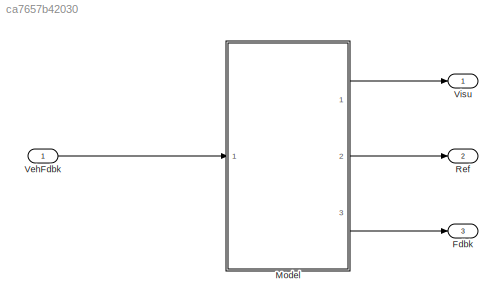
MODEL slx_ca7657b42030
KIND model
CONFIG AbsTol = auto
CONFIG EnableMultiTasking = off
CONFIG FixedStep = auto
CONFIG MaxStep = auto
CONFIG MinStep = auto
CONFIG RelTol = 1e-3
CONFIG SampleTimeConstraint = Unconstrained
CONFIG Solver = VariableStepAuto
CONFIG SolverName = VariableStepAuto
CONFIG StartTime = 0.0
CONFIG StopTime = 10.0
BLOCK [Outport] Fdbk
  Port = 3
BLOCK [ModelReference] Model
  ModelNameDialog = DriveSource.slx
  ModelReferenceVersion = 1.4
  Ports = [1, 3]
BLOCK [Outport] Ref
  Port = 2
BLOCK [Inport] VehFdbk
BLOCK [Outport] Visu
LINE Model:1 -> Visu:1
LINE Model:2 -> Ref:1
LINE Model:3 -> Fdbk:1
LINE VehFdbk:1 -> Model:1
